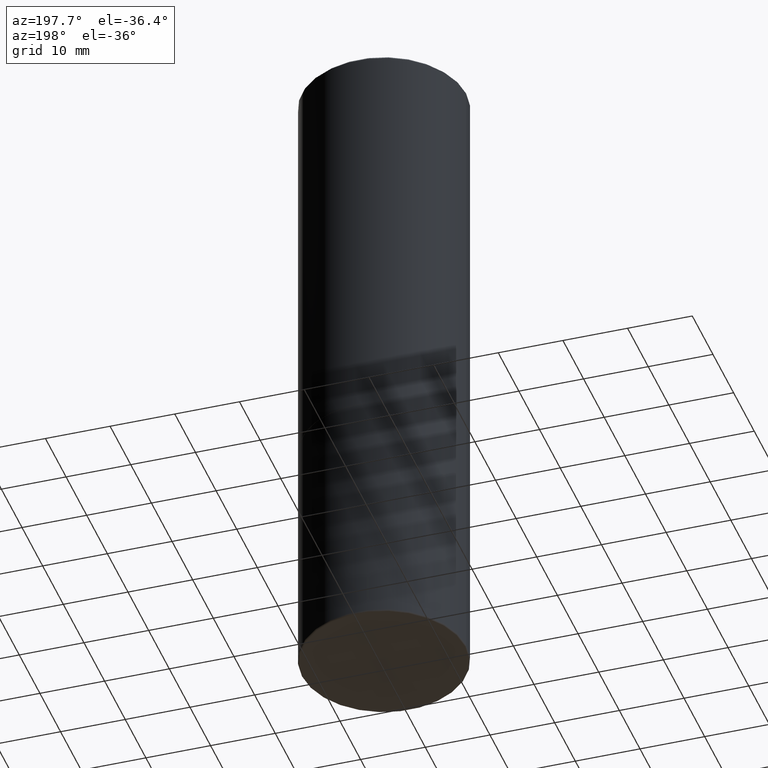
[diagram: clean part render]
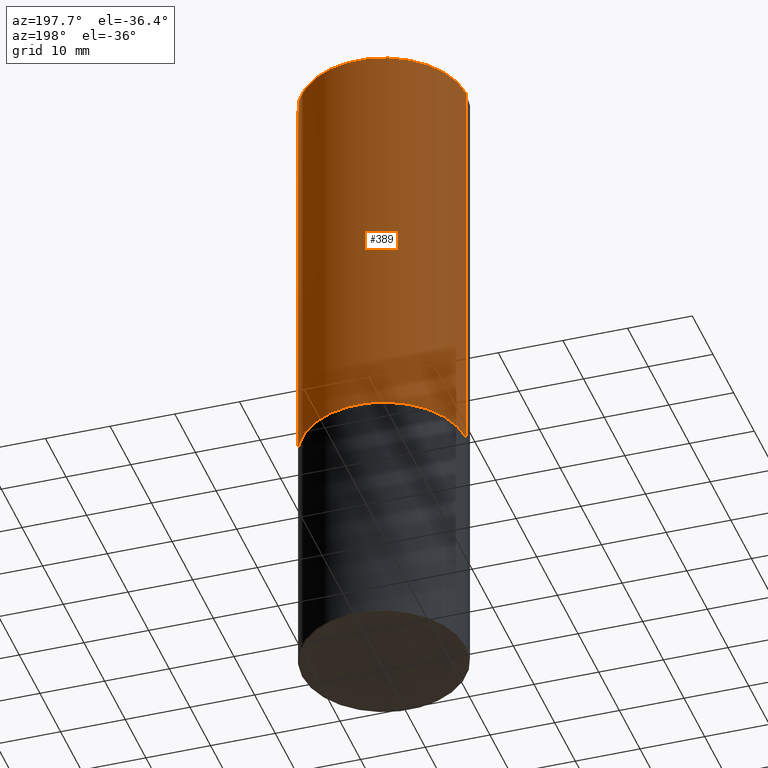
[diagram: same view with one face highlighted and labeled with its STEP entity id]
A machine part, auxiliary view. The second image highlights one B-rep face of the part: STEP entity #389.
In plain terms, the highlighted cylindrical surface (partial cylindrical patch) has radius 12.7 mm, axis along (-0, 0, 1).
Its self-contained STEP definition (entity closure, byte-faithful):
#1 = CIRCLE ( 'NONE', #6, 0.5000000000000002220 ) ;
#3 = CARTESIAN_POINT ( 'NONE',  ( -0.5000000000000001110, 3.552713678800501718E-15, -2.459467545127453732E-29 ) ) ;
#6 = AXIS2_PLACEMENT_3D ( 'NONE', #133, #68, #276 ) ;
#8 = CARTESIAN_POINT ( 'NONE',  ( -0.5000000000000002220, -8.448070674724393209E-16, -2.499000000000000110 ) ) ;
#10 = VERTEX_POINT ( 'NONE', #296 ) ;
#14 = EDGE_LOOP ( 'NONE', ( #251, #98, #172, #44 ) ) ;
#43 = DIRECTION ( 'NONE',  ( -2.445468806185136597E-29, 3.491481338843145583E-15, 1.000000000000000000 ) ) ;
#44 = ORIENTED_EDGE ( 'NONE', *, *, #332, .F. ) ;
#68 = DIRECTION ( 'NONE',  ( -2.445468806185136597E-29, 3.491481338843145583E-15, 1.000000000000000000 ) ) ;
#70 = CARTESIAN_POINT ( 'NONE',  ( -0.5000000000000001110, 3.421651712066270452E-15, -0.02000000000000010797 ) ) ;
#71 = AXIS2_PLACEMENT_3D ( 'NONE', #388, #163, #100 ) ;
#74 = CARTESIAN_POINT ( 'NONE',  ( 0.5000000000000001110, -3.491481338843134539E-15, 2.438088387897968457E-29 ) ) ;
#76 = CYLINDRICAL_SURFACE ( 'NONE', #244, 0.5000000000000001110 ) ;
#91 = VECTOR ( 'NONE', #135, 39.37007874015748143 ) ;
#98 = ORIENTED_EDGE ( 'NONE', *, *, #295, .T. ) ;
#100 = DIRECTION ( 'NONE',  ( 1.000000000000000000, -6.982962677686265922E-15, 0.000000000000000000 ) ) ;
#115 = FACE_OUTER_BOUND ( 'NONE', #14, .T. ) ;
#133 = CARTESIAN_POINT ( 'NONE',  ( 6.111226546656657010E-29, -8.725211865769021935E-15, -2.499000000000000110 ) ) ;
#135 = DIRECTION ( 'NONE',  ( -2.445468806185136877E-29, 3.491481338843145188E-15, 1.000000000000000000 ) ) ;
#163 = DIRECTION ( 'NONE',  ( -2.445468806185136597E-29, 3.491481338843145583E-15, 1.000000000000000000 ) ) ;
#172 = ORIENTED_EDGE ( 'NONE', *, *, #203, .F. ) ;
#183 = LINE ( 'NONE', #74, #214 ) ;
#203 = EDGE_CURVE ( 'NONE', #10, #210, #269, .T. ) ;
#209 = DIRECTION ( 'NONE',  ( -2.445468806185136877E-29, 3.491481338843145188E-15, 1.000000000000000000 ) ) ;
#210 = VERTEX_POINT ( 'NONE', #70 ) ;
#214 = VECTOR ( 'NONE', #209, 39.37007874015748143 ) ;
#244 = AXIS2_PLACEMENT_3D ( 'NONE', #312, #43, #285 ) ;
#249 = CARTESIAN_POINT ( 'NONE',  ( 0.5000000000000002220, -1.221669320461215845E-14, -2.499000000000000110 ) ) ;
#251 = ORIENTED_EDGE ( 'NONE', *, *, #278, .T. ) ;
#269 = CIRCLE ( 'NONE', #71, 0.5000000000000001110 ) ;
#276 = DIRECTION ( 'NONE',  ( 1.000000000000000000, -6.982962677686269866E-15, 0.000000000000000000 ) ) ;
#278 = EDGE_CURVE ( 'NONE', #325, #318, #1, .T. ) ;
#285 = DIRECTION ( 'NONE',  ( 1.000000000000000000, -6.982962677686267499E-15, 4.876176775795935793E-29 ) ) ;
#295 = EDGE_CURVE ( 'NONE', #318, #210, #327, .T. ) ;
#296 = CARTESIAN_POINT ( 'NONE',  ( 0.5000000000000001110, -3.500078625662629868E-15, -0.02000000000000010797 ) ) ;
#312 = CARTESIAN_POINT ( 'NONE',  ( 0.000000000000000000, 0.000000000000000000, 0.000000000000000000 ) ) ;
#318 = VERTEX_POINT ( 'NONE', #8 ) ;
#325 = VERTEX_POINT ( 'NONE', #249 ) ;
#327 = LINE ( 'NONE', #3, #91 ) ;
#332 = EDGE_CURVE ( 'NONE', #325, #10, #183, .T. ) ;
#388 = CARTESIAN_POINT ( 'NONE',  ( 4.890937612370299433E-31, -6.982962677686328587E-17, -0.02000000000000010797 ) ) ;
#389 = ADVANCED_FACE ( 'NONE', ( #115 ), #76, .T. ) ;